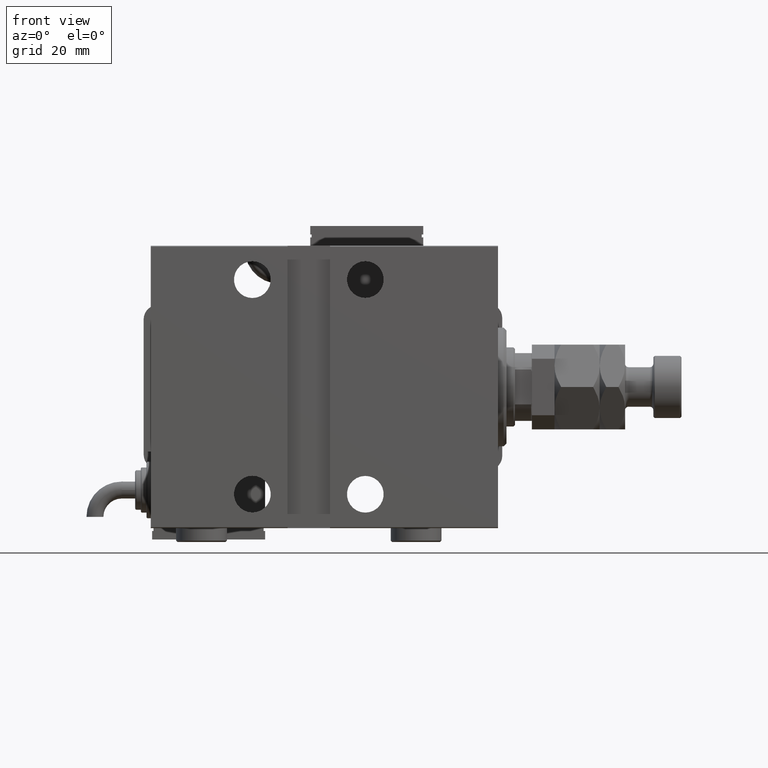
[diagram: clean part render]
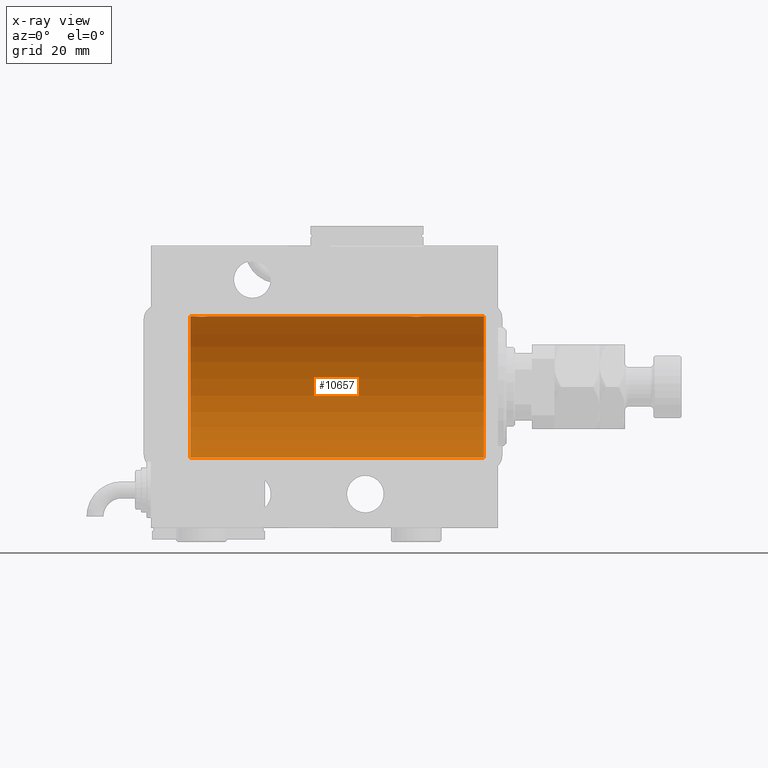
[diagram: x-ray — body ghosted, one internal face saturated and labeled with its STEP entity id]
A machine part, front view, then the same camera in x-ray: the body is ghosted and one INTERNAL B-rep face — a face not visible from any outside direction — is saturated and labeled: STEP entity #10657.
In plain terms, the highlighted cylindrical surface (partial cylindrical patch) has radius 25 mm, axis along (1, 0, -0).
Its self-contained STEP definition (entity closure, byte-faithful):
#1775 = CARTESIAN_POINT ( 'NONE',  ( 104.8329350482193973, -2.499872792855093451, 24.87469871246082320 ) ) ;
#2082 = CARTESIAN_POINT ( 'NONE',  ( 104.3509560983090267, -2.419770561643919127, 24.88263927071750814 ) ) ;
#2326 = DIRECTION ( 'NONE',  ( 0.000000000000000000, 0.000000000000000000, 1.000000000000000000 ) ) ;
#2413 = CARTESIAN_POINT ( 'NONE',  ( 28.67052319885732103, -2.483544361357271857, 24.87635491893501438 ) ) ;
#2714 = CARTESIAN_POINT ( 'NONE',  ( 31.49999999999998579, -0.3305063766663721148, 25.00000000000000000 ) ) ;
#3317 = CARTESIAN_POINT ( 'NONE',  ( 107.4334935523974792, -0.6588655613945869627, 24.99312727339970053 ) ) ;
#3940 = CARTESIAN_POINT ( 'NONE',  ( 106.6512113355911566, -1.884161199660627561, 24.92916496727982789 ) ) ;
#4370 = EDGE_CURVE ( 'NONE', #55007, #17677, #25903, .T. ) ;
#5051 = CARTESIAN_POINT ( 'NONE',  ( 109.0000000000000000, 3.061616997868383043E-15, -25.00000000000000000 ) ) ;
#5280 = VECTOR ( 'NONE', #36771, 1000.000000000000000 ) ;
#6469 = CARTESIAN_POINT ( 'NONE',  ( 104.6705231988572962, -2.483544361357281627, 24.87635491893501793 ) ) ;
#6498 = CARTESIAN_POINT ( 'NONE',  ( 30.25084023924055998, -2.170728182476720391, 24.90574631553725027 ) ) ;
#6615 = ORIENTED_EDGE ( 'NONE', *, *, #19391, .F. ) ;
#6768 = CARTESIAN_POINT ( 'NONE',  ( 103.1158761721352732, -1.651251241585110163, 24.94567559498348430 ) ) ;
#6796 = CARTESIAN_POINT ( 'NONE',  ( 27.11587617213528745, -1.651251241585102836, 24.94567559498349141 ) ) ;
#7017 = CARTESIAN_POINT ( 'NONE',  ( 5.000000000000004441, 0.000000000000000000, 0.000000000000000000 ) ) ;
#7105 = CARTESIAN_POINT ( 'NONE',  ( 30.98538033717094464, -1.528152964861312801, 24.95362559291378801 ) ) ;
#7412 = CARTESIAN_POINT ( 'NONE',  ( 28.35095609830903740, -2.419770561643910689, 24.88263927071751169 ) ) ;
#7413 = CARTESIAN_POINT ( 'NONE',  ( 26.50000000000000355, -1.940558383798427991E-23, 25.00000000000000000 ) ) ;
#8027 = CARTESIAN_POINT ( 'NONE',  ( 109.0000000000000000, 0.000000000000000000, 25.00000000000000000 ) ) ;
#8122 = VERTEX_POINT ( 'NONE', #18906 ) ;
#8807 = EDGE_CURVE ( 'NONE', #33266, #54652, #54785, .T. ) ;
#9125 = ORIENTED_EDGE ( 'NONE', *, *, #4370, .T. ) ;
#10657 = ADVANCED_FACE ( 'NONE', ( #56875 ), #57492, .F. ) ;
#10941 = EDGE_CURVE ( 'NONE', #28976, #17677, #12383, .T. ) ;
#11448 = CARTESIAN_POINT ( 'NONE',  ( 102.6278403059139350, -0.8058335233485532934, 24.98746277938383287 ) ) ;
#11778 = CARTESIAN_POINT ( 'NONE',  ( 27.34616663850662377, -1.881857718844717642, 24.92933960374833902 ) ) ;
#12383 = LINE ( 'NONE', #8027, #5280 ) ;
#12524 = VECTOR ( 'NONE', #56190, 1000.000000000000000 ) ;
#13193 = AXIS2_PLACEMENT_3D ( 'NONE', #14011, #33092, #48108 ) ;
#14011 = CARTESIAN_POINT ( 'NONE',  ( 109.0000000000000000, 0.000000000000000000, 0.000000000000000000 ) ) ;
#14714 = AXIS2_PLACEMENT_3D ( 'NONE', #35143, #49830, #25148 ) ;
#16131 = CARTESIAN_POINT ( 'NONE',  ( 104.1921165759419381, -2.371528299825759856, 24.88734287464370709 ) ) ;
#16158 = CARTESIAN_POINT ( 'NONE',  ( 31.43349355239747567, -0.6588655613945881839, 24.99312727339970053 ) ) ;
#16755 = CARTESIAN_POINT ( 'NONE',  ( 31.50000000000000000, -3.359922002512890391E-15, 25.00000000000000000 ) ) ;
#17677 = VERTEX_POINT ( 'NONE', #37510 ) ;
#18608 = CARTESIAN_POINT ( 'NONE',  ( 105.3259657003945904, -2.484007091859774086, 24.87630842367763151 ) ) ;
#18906 = CARTESIAN_POINT ( 'NONE',  ( 109.0000000000000000, 0.000000000000000000, 25.00000000000000000 ) ) ;
#19391 = EDGE_CURVE ( 'NONE', #52502, #8122, #41659, .T. ) ;
#21155 = ORIENTED_EDGE ( 'NONE', *, *, #47062, .F. ) ;
#21161 = CARTESIAN_POINT ( 'NONE',  ( 27.74616804575498108, -2.169003991399871989, 24.90589728951138326 ) ) ;
#21436 = CARTESIAN_POINT ( 'NONE',  ( 102.5000000000000000, -1.940203396391078535E-23, 25.00000000000000000 ) ) ;
#21464 = CARTESIAN_POINT ( 'NONE',  ( 29.64560666148631896, -2.420689345803761050, 24.88254961038873958 ) ) ;
#21746 = VECTOR ( 'NONE', #48488, 1000.000000000000000 ) ;
#21767 = CARTESIAN_POINT ( 'NONE',  ( 26.50000000000000711, -0.1631750940176214526, 25.00000000000000711 ) ) ;
#21888 = ORIENTED_EDGE ( 'NONE', *, *, #60459, .T. ) ;
#22959 = CARTESIAN_POINT ( 'NONE',  ( 109.0000000000000000, 0.000000000000000000, 25.00000000000000000 ) ) ;
#22991 = CARTESIAN_POINT ( 'NONE',  ( 106.5225677434019502, -1.989585286700258138, 24.92087098724766747 ) ) ;
#23344 = ORIENTED_EDGE ( 'NONE', *, *, #25006, .T. ) ;
#25006 = EDGE_CURVE ( 'NONE', #28976, #25440, #25929, .T. ) ;
#25148 = DIRECTION ( 'NONE',  ( 0.000000000000000000, 0.000000000000000000, 1.000000000000000000 ) ) ;
#25440 = VERTEX_POINT ( 'NONE', #48283 ) ;
#25550 = CARTESIAN_POINT ( 'NONE',  ( 30.52256774340189693, -1.989585286700245037, 24.92087098724766747 ) ) ;
#25903 = CIRCLE ( 'NONE', #60887, 25.00000000000000000 ) ;
#25929 = B_SPLINE_CURVE_WITH_KNOTS ( 'NONE', 3,
 ( #44935, #21767, #49635, #30253, #26156, #34643, #50252, #54631, #6796, #11778, #58711, #21161, #30552, #45240, #7412, #2413, #49340, #49941, #40535, #21464, #53720, #30851, #6498, #25550, #40842, #59615, #7105, #26456, #45540, #16158, #2714, #16755 ),
 .UNSPECIFIED., .F., .F.,
 ( 4, 2, 2, 2, 2, 2, 2, 2, 2, 2, 2, 2, 2, 2, 2, 4 ),
 ( 0.007821024441662275534, 0.008309723826317880202, 0.008798423210973486605, 0.009287122595629093008, 0.009775821980284697676, 0.01026452136494030234, 0.01075322074959590875, 0.01124192013425151515, 0.01173061951890711982, 0.01221931890356272449, 0.01270801828821833089, 0.01319671767287393729, 0.01368541705752954196, 0.01417411644218514663, 0.01466281582684075303, 0.01564021459615196410 ),
 .UNSPECIFIED. ) ;
#26156 = CARTESIAN_POINT ( 'NONE',  ( 26.62784030591392792, -0.8058335233485480753, 24.98746277938383287 ) ) ;
#26426 = CARTESIAN_POINT ( 'NONE',  ( 103.3461666385066025, -1.881857718844725857, 24.92933960374833546 ) ) ;
#26456 = CARTESIAN_POINT ( 'NONE',  ( 31.16827641493957302, -1.255214705003183440, 24.96884293994578385 ) ) ;
#27064 = CARTESIAN_POINT ( 'NONE',  ( 107.5000000000000426, -0.3305063766663758895, 25.00000000000000355 ) ) ;
#27349 = LINE ( 'NONE', #22959, #55480 ) ;
#27408 = LINE ( 'NONE', #46482, #12524 ) ;
#28976 = VERTEX_POINT ( 'NONE', #7413 ) ;
#30253 = CARTESIAN_POINT ( 'NONE',  ( 26.57985090779070347, -0.6480119923854229524, 24.99212088949390420 ) ) ;
#30520 = CARTESIAN_POINT ( 'NONE',  ( 102.7523974898045083, -1.106703319666891838, 24.97594585958023217 ) ) ;
#30552 = CARTESIAN_POINT ( 'NONE',  ( 27.88963203491136156, -2.245863995402901381, 24.89899750494197050 ) ) ;
#30851 = CARTESIAN_POINT ( 'NONE',  ( 30.10723845838410284, -2.247417070759897495, 24.89885693081946272 ) ) ;
#31127 = CARTESIAN_POINT ( 'NONE',  ( 102.8298870971907775, -1.252049606094350453, 24.96900299967627390 ) ) ;
#33000 = CARTESIAN_POINT ( 'NONE',  ( 106.1072384583841028, -2.247417070759907709, 24.89885693081946272 ) ) ;
#33092 = DIRECTION ( 'NONE',  ( -1.000000000000000000, -0.000000000000000000, -0.000000000000000000 ) ) ;
#33224 = ORIENTED_EDGE ( 'NONE', *, *, #8807, .T. ) ;
#33266 = VERTEX_POINT ( 'NONE', #61167 ) ;
#34643 = CARTESIAN_POINT ( 'NONE',  ( 26.75239748980449761, -1.106703319666885399, 24.97594585958023572 ) ) ;
#35143 = CARTESIAN_POINT ( 'NONE',  ( 109.0000000000000000, 0.000000000000000000, 0.000000000000000000 ) ) ;
#35204 = CARTESIAN_POINT ( 'NONE',  ( 5.000000000000004441, 3.061616997868383043E-15, -25.00000000000000000 ) ) ;
#35883 = CARTESIAN_POINT ( 'NONE',  ( 109.0000000000000000, 3.061616997868383043E-15, -25.00000000000000000 ) ) ;
#36771 = DIRECTION ( 'NONE',  ( -1.000000000000000000, -0.000000000000000000, -0.000000000000000000 ) ) ;
#37375 = CARTESIAN_POINT ( 'NONE',  ( 106.8818595414864632, -1.653834020452947362, 24.94550385189584318 ) ) ;
#37510 = CARTESIAN_POINT ( 'NONE',  ( 5.000000000000004441, 0.000000000000000000, 25.00000000000000000 ) ) ;
#37685 = CARTESIAN_POINT ( 'NONE',  ( 106.9853803371709375, -1.528152964861310803, 24.95362559291378091 ) ) ;
#40503 = CARTESIAN_POINT ( 'NONE',  ( 102.4999999999999432, -0.1631750940176235343, 25.00000000000000355 ) ) ;
#40535 = CARTESIAN_POINT ( 'NONE',  ( 29.32596570039460104, -2.484007091859765204, 24.87630842367763506 ) ) ;
#40842 = CARTESIAN_POINT ( 'NONE',  ( 30.65121133559112820, -1.884161199660616459, 24.92916496727982434 ) ) ;
#41186 = CARTESIAN_POINT ( 'NONE',  ( 107.5000000000000000, 2.971051067387116602E-15, 25.00000000000000000 ) ) ;
#41621 = EDGE_LOOP ( 'NONE', ( #6615, #21888, #9125, #51350, #23344, #21155, #33224, #58951 ) ) ;
#41659 = CIRCLE ( 'NONE', #14714, 25.00000000000000000 ) ;
#44904 = CARTESIAN_POINT ( 'NONE',  ( 102.5158215994234183, -0.3254210271412264488, 24.99840249400844883 ) ) ;
#44935 = CARTESIAN_POINT ( 'NONE',  ( 26.50000000000000355, -1.940558383798427991E-23, 25.00000000000000000 ) ) ;
#45150 = DIRECTION ( 'NONE',  ( -1.000000000000000000, 0.000000000000000000, 0.000000000000000000 ) ) ;
#45240 = CARTESIAN_POINT ( 'NONE',  ( 28.19211657594193809, -2.371528299825749198, 24.88734287464370709 ) ) ;
#45511 = CARTESIAN_POINT ( 'NONE',  ( 103.4746381775692043, -1.987446652080271159, 24.92104239223420592 ) ) ;
#45540 = CARTESIAN_POINT ( 'NONE',  ( 31.24606379094067066, -1.109818057797417046, 24.97580694515541921 ) ) ;
#46482 = CARTESIAN_POINT ( 'NONE',  ( 109.0000000000000000, 0.000000000000000000, 25.00000000000000000 ) ) ;
#47062 = EDGE_CURVE ( 'NONE', #33266, #25440, #27408, .T. ) ;
#48108 = DIRECTION ( 'NONE',  ( 0.000000000000000000, 0.000000000000000000, 1.000000000000000000 ) ) ;
#48283 = CARTESIAN_POINT ( 'NONE',  ( 31.50000000000000000, -3.359922002512890391E-15, 25.00000000000000000 ) ) ;
#48488 = DIRECTION ( 'NONE',  ( -1.000000000000000000, -0.000000000000000000, -0.000000000000000000 ) ) ;
#49309 = CARTESIAN_POINT ( 'NONE',  ( 103.0125018416559897, -1.525407911884377965, 24.95379469572361941 ) ) ;
#49340 = CARTESIAN_POINT ( 'NONE',  ( 28.83293504821940090, -2.499872792855082793, 24.87469871246082320 ) ) ;
#49604 = CARTESIAN_POINT ( 'NONE',  ( 103.7461680457549846, -2.169003991399879983, 24.90589728951138326 ) ) ;
#49635 = CARTESIAN_POINT ( 'NONE',  ( 26.51582159942343608, -0.3254210271412225630, 24.99840249400844883 ) ) ;
#49830 = DIRECTION ( 'NONE',  ( -1.000000000000000000, 0.000000000000000000, 0.000000000000000000 ) ) ;
#49941 = CARTESIAN_POINT ( 'NONE',  ( 29.16323589638543723, -2.500125740978195843, 24.87467329022545570 ) ) ;
#50252 = CARTESIAN_POINT ( 'NONE',  ( 26.82988709719076681, -1.252049606094339795, 24.96900299967627390 ) ) ;
#50370 = EDGE_CURVE ( 'NONE', #8122, #54652, #27349, .T. ) ;
#50497 = DIRECTION ( 'NONE',  ( -1.000000000000000000, -0.000000000000000000, -0.000000000000000000 ) ) ;
#50844 = CARTESIAN_POINT ( 'NONE',  ( 106.2508402392405458, -2.170728182476731938, 24.90574631553725027 ) ) ;
#51350 = ORIENTED_EDGE ( 'NONE', *, *, #10941, .F. ) ;
#51768 = CARTESIAN_POINT ( 'NONE',  ( 107.5000000000000000, 2.971051067387116602E-15, 25.00000000000000000 ) ) ;
#52084 = CARTESIAN_POINT ( 'NONE',  ( 105.8043566091630083, -2.372734907014184991, 24.88722742718433523 ) ) ;
#52502 = VERTEX_POINT ( 'NONE', #35883 ) ;
#53720 = CARTESIAN_POINT ( 'NONE',  ( 29.80435660916301899, -2.372734907014175665, 24.88722742718433878 ) ) ;
#54631 = CARTESIAN_POINT ( 'NONE',  ( 27.01250184165601809, -1.525407911884367085, 24.95379469572361941 ) ) ;
#54652 = VERTEX_POINT ( 'NONE', #41186 ) ;
#54785 = B_SPLINE_CURVE_WITH_KNOTS ( 'NONE', 3,
 ( #21436, #40503, #44904, #59583, #11448, #30520, #31127, #49309, #6768, #26426, #45511, #49604, #55526, #16131, #2082, #6469, #1775, #58986, #18608, #60519, #52084, #33000, #50844, #22991, #3940, #37375, #37685, #56156, #56781, #3317, #27064, #51768 ),
 .UNSPECIFIED., .F., .F.,
 ( 4, 2, 2, 2, 2, 2, 2, 2, 2, 2, 2, 2, 2, 2, 2, 4 ),
 ( 0.007821024441662341453, 0.008309723826317951326, 0.008798423210973559463, 0.009287122595629169336, 0.009775821980284777474, 0.01026452136494038735, 0.01075322074959599548, 0.01124192013425160536, 0.01173061951890721349, 0.01221931890356282337, 0.01270801828821843324, 0.01319671767287404138, 0.01368541705752964951, 0.01417411644218525939, 0.01466281582684086926, 0.01564021459615210288 ),
 .UNSPECIFIED. ) ;
#55007 = VERTEX_POINT ( 'NONE', #35204 ) ;
#55480 = VECTOR ( 'NONE', #50497, 1000.000000000000000 ) ;
#55526 = CARTESIAN_POINT ( 'NONE',  ( 103.8896320349113722, -2.245863995402913371, 24.89899750494197050 ) ) ;
#56156 = CARTESIAN_POINT ( 'NONE',  ( 107.1682764149395553, -1.255214705003179221, 24.96884293994577675 ) ) ;
#56190 = DIRECTION ( 'NONE',  ( -1.000000000000000000, -0.000000000000000000, -0.000000000000000000 ) ) ;
#56781 = CARTESIAN_POINT ( 'NONE',  ( 107.2460637909406813, -1.109818057797417490, 24.97580694515541921 ) ) ;
#56875 = FACE_OUTER_BOUND ( 'NONE', #41621, .T. ) ;
#57492 = CYLINDRICAL_SURFACE ( 'NONE', #13193, 25.00000000000000000 ) ;
#58479 = LINE ( 'NONE', #5051, #21746 ) ;
#58711 = CARTESIAN_POINT ( 'NONE',  ( 27.47463817756919369, -1.987446652080264720, 24.92104239223420592 ) ) ;
#58951 = ORIENTED_EDGE ( 'NONE', *, *, #50370, .F. ) ;
#58986 = CARTESIAN_POINT ( 'NONE',  ( 105.1632358963854159, -2.500125740978206057, 24.87467329022545570 ) ) ;
#59583 = CARTESIAN_POINT ( 'NONE',  ( 102.5798509077906999, -0.6480119923854288366, 24.99212088949390775 ) ) ;
#59615 = CARTESIAN_POINT ( 'NONE',  ( 30.88185954148645962, -1.653834020452937814, 24.94550385189585029 ) ) ;
#60459 = EDGE_CURVE ( 'NONE', #52502, #55007, #58479, .T. ) ;
#60519 = CARTESIAN_POINT ( 'NONE',  ( 105.6456066614863119, -2.420689345803769044, 24.88254961038873958 ) ) ;
#60887 = AXIS2_PLACEMENT_3D ( 'NONE', #7017, #45150, #2326 ) ;
#61167 = CARTESIAN_POINT ( 'NONE',  ( 102.5000000000000000, -1.940203396391078535E-23, 25.00000000000000000 ) ) ;